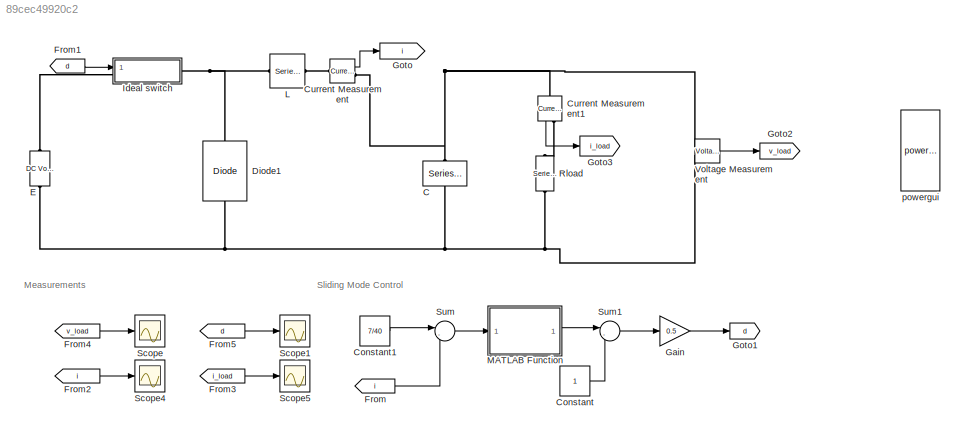
MODEL slx_89cec49920c2
KIND model
CONFIG AbsTol = auto
CONFIG EnableMultiTasking = off
CONFIG FixedStep = auto
CONFIG MaxStep = auto
CONFIG MinStep = auto
CONFIG RelTol = 1e-7
CONFIG SampleTimeConstraint = Unconstrained
CONFIG SolverName = VariableStepAuto
CONFIG StartTime = 0.0
CONFIG StopTime = 0.01
BLOCK [Reference] C  REF=spsSeriesRLCBranchLib/Series RLC Branch
  NameLocation = left
  Ports = [0, 0, 0, 0, 0, 1, 1]
  SourceBlock = spsSeriesRLCBranchLib/Series RLC Branch
  SourceType = Series RLC Branch
BLOCK [Constant] Constant
BLOCK [Constant] Constant1
  Value = 7/40
BLOCK [Reference] Current Measurement  REF=spsCurrentMeasurementLib/Current Measurement
  Ports = [0, 1, 0, 0, 0, 1, 1]
  SourceBlock = spsCurrentMeasurementLib/Current Measurement
  SourceType = Current Measurement
  UserDataPersistent = on
BLOCK [Reference] Current Measurement1  REF=spsCurrentMeasurementLib/Current Measurement
  NameLocation = left
  Ports = [0, 1, 0, 0, 0, 1, 1]
  SourceBlock = spsCurrentMeasurementLib/Current Measurement
  SourceType = Current Measurement
  UserDataPersistent = on
BLOCK [Reference] Diode1  REF=spsDiodeLib/Diode
  NameLocation = right
  Ports = [0, 0, 0, 0, 0, 1, 1]
  SourceBlock = spsDiodeLib/Diode
  SourceType = Diode
BLOCK [Reference] E  REF=spsDCVoltageSourceLib/DC Voltage Source
  NameLocation = left
  Ports = [0, 0, 0, 0, 0, 1, 1]
  SourceBlock = spsDCVoltageSourceLib/DC Voltage Source
  SourceType = DC Voltage Source
BLOCK [From] From
  GotoTag = i
BLOCK [From] From1
  GotoTag = d
BLOCK [From] From2
  GotoTag = i
BLOCK [From] From3
  GotoTag = i_load
BLOCK [From] From4
  GotoTag = v_load
BLOCK [From] From5
  GotoTag = d
BLOCK [Gain] Gain
  Gain = 0.5
BLOCK [Goto] Goto
  GotoTag = i
BLOCK [Goto] Goto1
  GotoTag = d
BLOCK [Goto] Goto2
  GotoTag = v_load
BLOCK [Goto] Goto3
  GotoTag = i_load
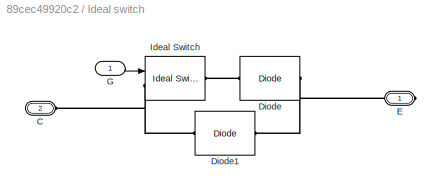
BLOCK [SubSystem] Ideal switch
  Ports = [1, 0, 0, 0, 0, 1, 1]
BLOCK [PMIOPort] Ideal switch/C
  Port = 2
  Side = Left
BLOCK [Reference] Ideal switch/Diode  REF=spsDiodeLib/Diode
  Ports = [0, 0, 0, 0, 0, 1, 1]
  SourceBlock = spsDiodeLib/Diode
  SourceType = Diode
BLOCK [Reference] Ideal switch/Diode1  REF=spsDiodeLib/Diode
  Ports = [0, 0, 0, 0, 0, 1, 1]
  SourceBlock = spsDiodeLib/Diode
  SourceType = Diode
BLOCK [PMIOPort] Ideal switch/E
  Side = Right
BLOCK [Inport] Ideal switch/G
BLOCK [Reference] Ideal switch/Ideal Switch  REF=spsIdealSwitchLib/Ideal Switch
  Ports = [1, 0, 0, 0, 0, 1, 1]
  SourceBlock = spsIdealSwitchLib/Ideal Switch
  SourceType = Ideal Switch
BLOCK [Reference] L  REF=spsSeriesRLCBranchLib/Series RLC Branch
  Ports = [0, 0, 0, 0, 0, 1, 1]
  SourceBlock = spsSeriesRLCBranchLib/Series RLC Branch
  SourceType = Series RLC Branch
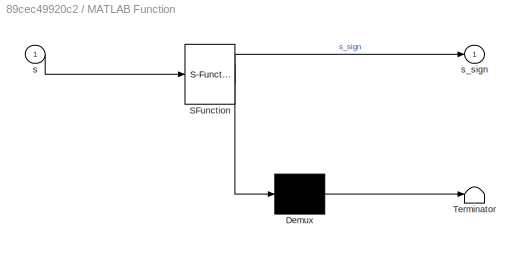
BLOCK [SubSystem] MATLAB Function
  ErrorFcn = Stateflow.Translate.translate
  PermitHierarchicalResolution = ExplicitOnly
  Ports = [1, 1]
  SFBlockType = MATLAB Function
  TreatAsAtomicUnit = on
BLOCK [Demux] MATLAB Function/ Demux 
  Outputs = 1
  Ports = [1, 1]
BLOCK [S-Function] MATLAB Function/ SFunction 
  EnableBusSupport = on
  FunctionName = sf_sfun
  PortCounts = [1 2]
  Ports = [1, 2]
  SFcnIsStateOwnerBlock = off
  SFunctionDeploymentMode = off
  Tag = Stateflow S-Function 2
BLOCK [Terminator] MATLAB Function/ Terminator 
BLOCK [Inport] MATLAB Function/s
BLOCK [Outport] MATLAB Function/s_sign
BLOCK [Reference] Rload  REF=spsSeriesRLCBranchLib/Series RLC Branch
  NameLocation = left
  Ports = [0, 0, 0, 0, 0, 1, 1]
  SourceBlock = spsSeriesRLCBranchLib/Series RLC Branch
  SourceType = Series RLC Branch
BLOCK [Scope] Scope
  Floating = off
  NumInputPorts = 1
  Ports = [1]
  ScopeSpecificationString = Simulink.scopes.TimeScopeBlockCfg('CurrentConfiguration', extmgr.ConfigurationSet(extmgr.Configuration('Core','General UI',true),extmgr.Configuration('Core','Source UI',true),extmgr.Configuration('Sources','WiredSimulink',true),extmgr.Configuration('Visuals','Time Domain',true,'SerializedDisplays',{struct('MinYLimReal','-0.87607','MaxYLimReal','7.88464','YLabelReal','','MinYLimMag','0.00000','MaxY...<+1368ch>
BLOCK [Scope] Scope1
  Floating = off
  NumInputPorts = 1
  Ports = [1]
  ScopeSpecificationString = Simulink.scopes.TimeScopeBlockCfg('CurrentConfiguration', extmgr.ConfigurationSet(extmgr.Configuration('Core','General UI',true),extmgr.Configuration('Core','Source UI',true),extmgr.Configuration('Sources','WiredSimulink',true,'DataLoggingVariableName','ScopeData1'),extmgr.Configuration('Visuals','Time Domain',true,'SerializedDisplays',{struct('MinYLimReal','-0.125','MaxYLimReal','1.125','YLabelRe...<+1378ch>
BLOCK [Scope] Scope4
  Floating = off
  NumInputPorts = 1
  Ports = [1]
  ScopeSpecificationString = Simulink.scopes.TimeScopeBlockCfg('CurrentConfiguration', extmgr.ConfigurationSet(extmgr.Configuration('Core','General UI',true),extmgr.Configuration('Core','Source UI',true),extmgr.Configuration('Sources','WiredSimulink',true,'DataLoggingVariableName','ScopeData4'),extmgr.Configuration('Visuals','Time Domain',true,'SerializedDisplays',{struct('MinYLimReal','0.17479','MaxYLimReal','0.17574','YLabe...<+1424ch>
BLOCK [Scope] Scope5
  Floating = off
  NumInputPorts = 1
  Ports = [1]
  ScopeSpecificationString = Simulink.scopes.TimeScopeBlockCfg('CurrentConfiguration', extmgr.ConfigurationSet(extmgr.Configuration('Core','General UI',true),extmgr.Configuration('Core','Source UI',true),extmgr.Configuration('Sources','WiredSimulink',true,'DataLoggingVariableName','ScopeData5'),extmgr.Configuration('Visuals','Time Domain',true,'SerializedDisplays',{struct('MinYLimReal','-0.0219','MaxYLimReal','0.19712','YLabe...<+1404ch>
BLOCK [Sum] Sum
  Inputs = |-+
  Ports = [2, 1]
BLOCK [Sum] Sum1
  Inputs = |-+
  Ports = [2, 1]
BLOCK [Reference] Voltage Measurement  REF=spsVoltageMeasurementLib/Voltage Measurement
  Ports = [0, 1, 0, 0, 0, 2]
  SourceBlock = spsVoltageMeasurementLib/Voltage Measurement
  SourceType = Voltage Measurement
  UserDataPersistent = on
BLOCK [Reference] powergui  REF=spspowerguiLib/powergui
  NameLocation = left
  Ports = []
  Priority = 1
  SourceBlock = spspowerguiLib/powergui
  SourceType = PSB option menu block
ANNOTATION (root): Measurements
ANNOTATION (root): Sliding Mode Control
LINE Constant1:1 -> Sum:1
LINE Constant:1 -> Sum1:2
LINE Current Measurement1:1 -> Goto3:1
LINE Current Measurement:1 -> Goto:1
LINE From1:1 -> Ideal switch:1
LINE From2:1 -> Scope4:1
LINE From3:1 -> Scope5:1
LINE From4:1 -> Scope:1
LINE From5:1 -> Scope1:1
LINE From:1 -> Sum:2
LINE Gain:1 -> Goto1:1
LINE Ideal switch/G:1 -> Ideal switch/Ideal Switch:1
LINE MATLAB Function:1 -> Sum1:1
LINE Sum1:1 -> Gain:1
LINE Sum:1 -> MATLAB Function:1
LINE Voltage Measurement:1 -> Goto2:1
PNET net1: C:LConn1 -- Current Measurement1:LConn1 -- Current Measurement:RConn1 -- Voltage Measurement:LConn1
PNET net2: C:RConn1 -- Diode1:LConn1 -- E:LConn1 -- Rload:RConn1 -- Voltage Measurement:LConn2
PLINE Current Measurement1:RConn1 -- Rload:LConn1
PLINE Current Measurement:LConn1 -- L:RConn1
PNET net3: Diode1:RConn1 -- Ideal switch:RConn1 -- L:LConn1
PLINE E:RConn1 -- Ideal switch:LConn1
PNET net4: Ideal switch/C:RConn1 -- Ideal switch/Diode1:RConn1 -- Ideal switch/Ideal Switch:LConn1
PNET net5: Ideal switch/Diode1:LConn1 -- Ideal switch/Diode:RConn1 -- Ideal switch/E:RConn1
PLINE Ideal switch/Diode:LConn1 -- Ideal switch/Ideal Switch:RConn1
note: PNET lines group multi-terminal physical nets as a canonical sorted terminal list (undirected conserving connections); 2-terminal nets keep the pairwise PLINE form
CHART MATLAB Function states=1 transitions=1
  STATE_LABEL 'eML_blk_kernel()'
  STATE_LABEL 'SCRIPT:\nfunction s_sign = calculate_sign(s)\n\nif(s > 0)\n    s_sign = 1;\nelseif (s == 0)\n    s_sign = 0;\nelse \n    s_sign = -1;\nend\nreturn \n    \n\n'
CHART  states=0 transitions=0
